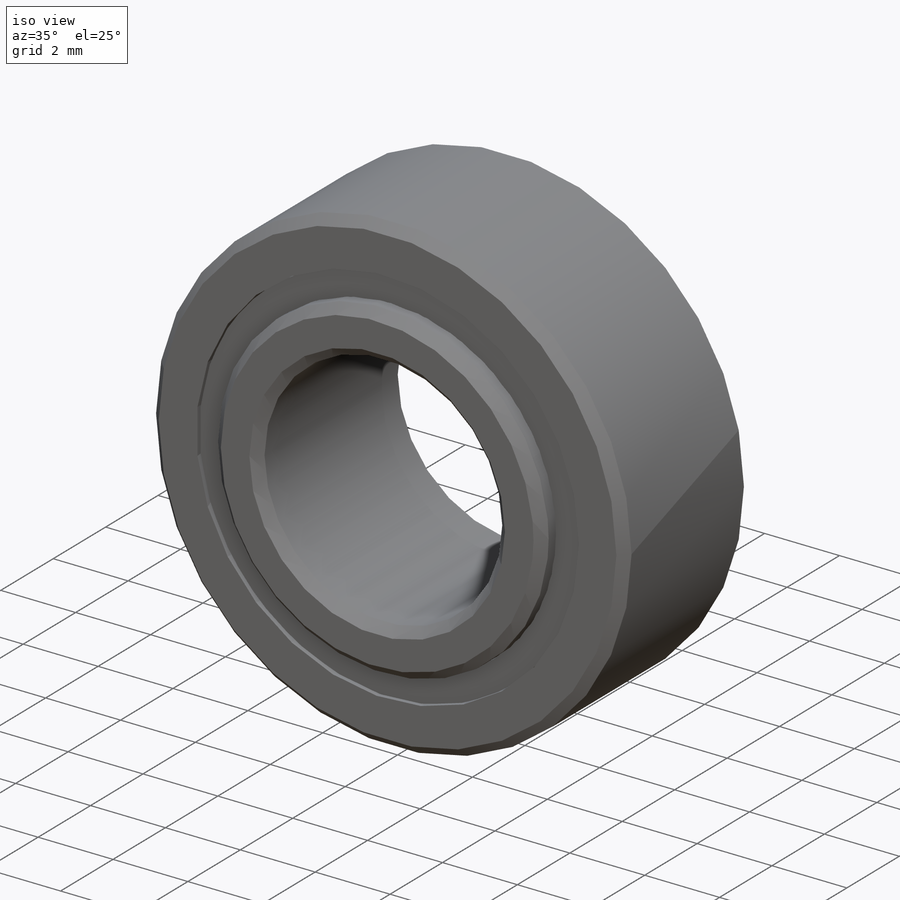
[diagram: iso view]
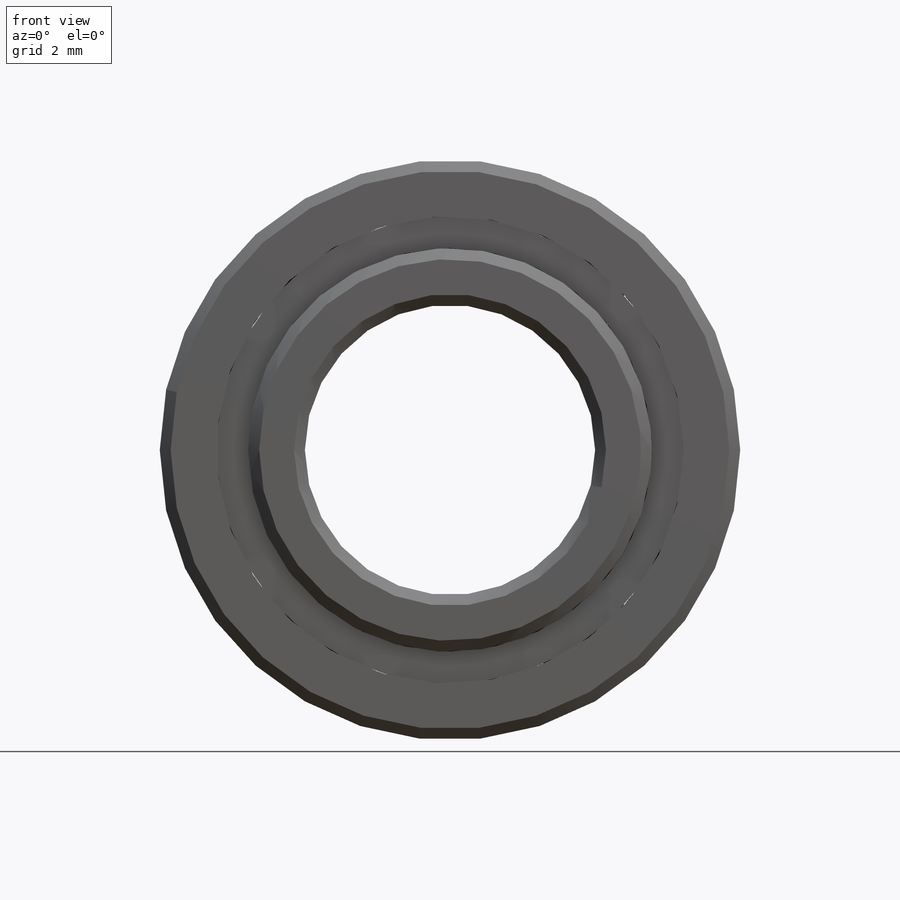
[diagram: front view]
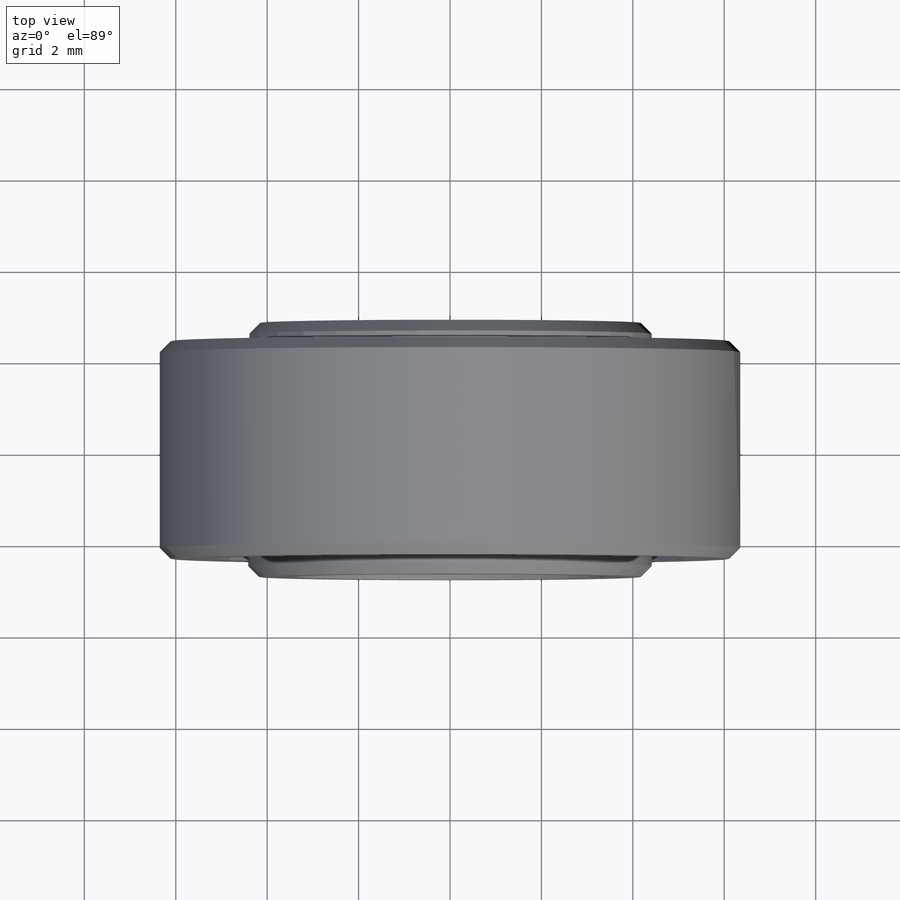
[diagram: top view]
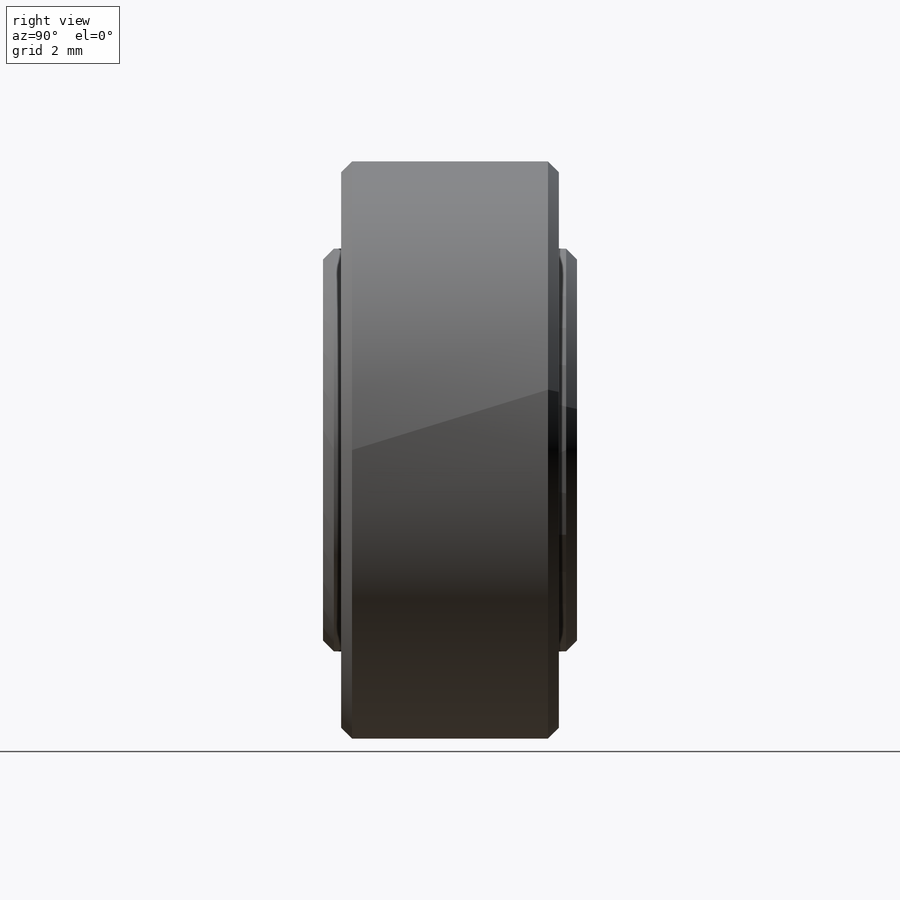
[diagram: right view]
SOLIDWORKS PART (.sldprt)
format: sldprt  version: not decoded by parser v0  size: 537,600 bytes
history: native  units: mm
features: sketch x4, revolve x4, material x1, pattern_circular x1 (+14 scaffold rows collapsed)
feature tree (24):
  scaffold x14  (default folders/planes/origin — collapsed)
  material  "AISI 304"
  sketch  "Sketch1"  dims[c1.D3=~8.087863mm c1.Width=4.7625mm c1.OD=12.7mm c1.D1=~8.793076mm c2.D1=45.0deg c2.D2=~0.238125mm c2.Shaft Dia=6.35mm c2.D3=~2.116667mm c2.D4=~0.348901mm]
  revolve  "Revolve1"  Angle=360deg
  sketch  "Sketch3"  dims[c1.Ring=~5.55752mm c1.D1=~0.237418mm c2.D1=45.0deg]
  revolve  "Revolve3"  Angle=360deg
  sketch  "Sketch4"
  revolve  "Revolve4"  Angle=360deg
  pattern_circular  "CirPattern1"  Count=10 Angle=36deg Balls=10
  sketch  "Sketch5"
  revolve  "Revolve5"  Angle=360deg
decode coverage: 7 of 9 modeling features carry decoded parameters
note: ~ marks probable driven/reference dimensions
note: suppression state not decoded; provenance and decode notes live in map.json
